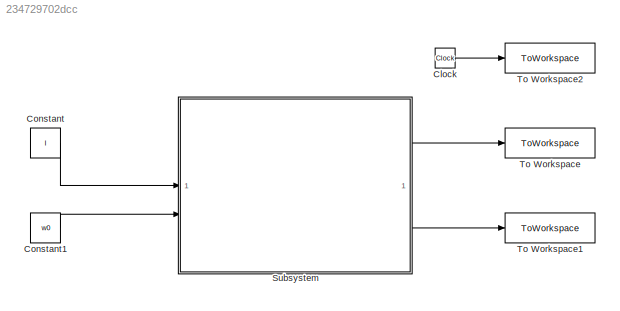
MODEL slx_234729702dcc
KIND model
CONFIG AbsTol = auto
CONFIG EnableMultiTasking = off
CONFIG FixedStep = auto
CONFIG MaxStep = auto
CONFIG MinStep = auto
CONFIG RelTol = 1e-3
CONFIG SampleTimeConstraint = Unconstrained
CONFIG SolverName = VariableStepAuto
CONFIG StartTime = 0.0
CONFIG StopTime = 10.0
BLOCK [Clock] Clock
BLOCK [Constant] Constant
  Value = I
BLOCK [Constant] Constant1
  Value = w0
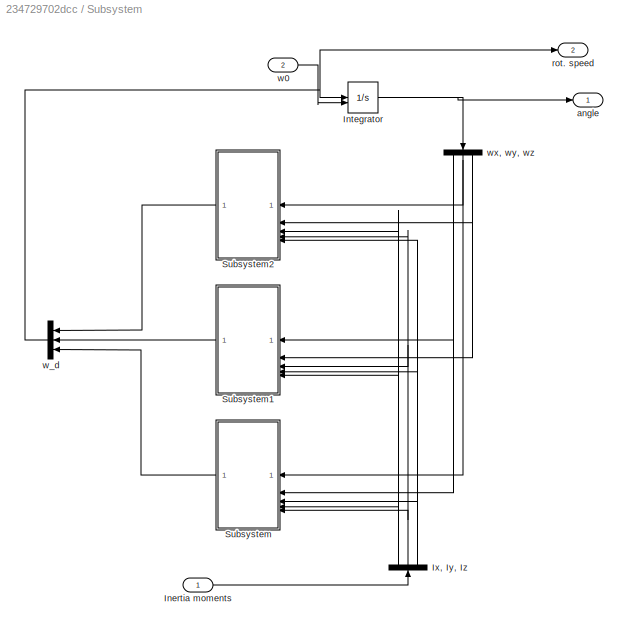
BLOCK [SubSystem] Subsystem
BLOCK [Inport] Subsystem/Inertia moments
BLOCK [Integrator] Subsystem/Integrator
  InitialConditionSource = external
BLOCK [Demux] Subsystem/Ix, Iy, Iz
  NameLocation = right
  Outputs = 3
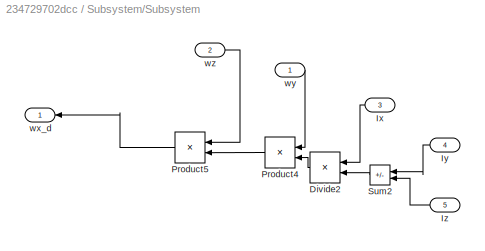
BLOCK [SubSystem] Subsystem/Subsystem
  NameLocation = top
BLOCK [Product] Subsystem/Subsystem/Divide2
  Inputs = /*
  NameLocation = top
BLOCK [Inport] Subsystem/Subsystem/Ix
  Port = 3
BLOCK [Inport] Subsystem/Subsystem/Iy
  Port = 4
BLOCK [Inport] Subsystem/Subsystem/Iz
  Port = 5
BLOCK [Product] Subsystem/Subsystem/Product4
  NameLocation = top
BLOCK [Product] Subsystem/Subsystem/Product5
  NameLocation = top
BLOCK [Sum] Subsystem/Subsystem/Sum2
  IconShape = rectangular
  Inputs = |+-
  NameLocation = top
BLOCK [Outport] Subsystem/Subsystem/wx_d
BLOCK [Inport] Subsystem/Subsystem/wy
BLOCK [Inport] Subsystem/Subsystem/wz
  Port = 2
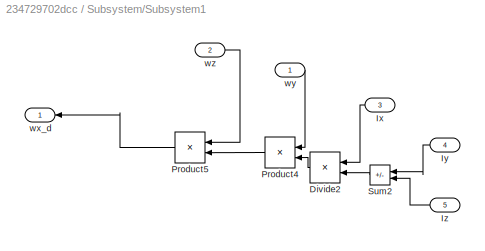
BLOCK [SubSystem] Subsystem/Subsystem1
  NameLocation = top
BLOCK [Product] Subsystem/Subsystem1/Divide2
  Inputs = /*
  NameLocation = top
BLOCK [Inport] Subsystem/Subsystem1/Ix
  Port = 3
BLOCK [Inport] Subsystem/Subsystem1/Iy
  Port = 4
BLOCK [Inport] Subsystem/Subsystem1/Iz
  Port = 5
BLOCK [Product] Subsystem/Subsystem1/Product4
  NameLocation = top
BLOCK [Product] Subsystem/Subsystem1/Product5
  NameLocation = top
BLOCK [Sum] Subsystem/Subsystem1/Sum2
  IconShape = rectangular
  Inputs = |+-
  NameLocation = top
BLOCK [Outport] Subsystem/Subsystem1/wx_d
BLOCK [Inport] Subsystem/Subsystem1/wy
BLOCK [Inport] Subsystem/Subsystem1/wz
  Port = 2
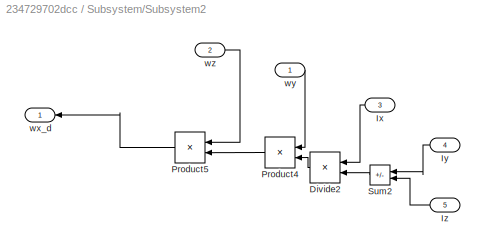
BLOCK [SubSystem] Subsystem/Subsystem2
  NameLocation = top
BLOCK [Product] Subsystem/Subsystem2/Divide2
  Inputs = /*
  NameLocation = top
BLOCK [Inport] Subsystem/Subsystem2/Ix
  Port = 3
BLOCK [Inport] Subsystem/Subsystem2/Iy
  Port = 4
BLOCK [Inport] Subsystem/Subsystem2/Iz
  Port = 5
BLOCK [Product] Subsystem/Subsystem2/Product4
  NameLocation = top
BLOCK [Product] Subsystem/Subsystem2/Product5
  NameLocation = top
BLOCK [Sum] Subsystem/Subsystem2/Sum2
  IconShape = rectangular
  Inputs = |+-
  NameLocation = top
BLOCK [Outport] Subsystem/Subsystem2/wx_d
BLOCK [Inport] Subsystem/Subsystem2/wy
BLOCK [Inport] Subsystem/Subsystem2/wz
  Port = 2
BLOCK [Outport] Subsystem/angle
BLOCK [Outport] Subsystem/rot. speed
  Port = 2
BLOCK [Inport] Subsystem/w0
  Port = 2
BLOCK [Mux] Subsystem/w_d
  DisplayOption = bar
  Inputs = 3
  NameLocation = top
BLOCK [Demux] Subsystem/wx, wy, wz
  NameLocation = left
  Outputs = 3
BLOCK [ToWorkspace] To Workspace
  FixptAsFi = on
  MaxDataPoints = inf
  SampleTime = -1
  VariableName = w
BLOCK [ToWorkspace] To Workspace1
  FixptAsFi = on
  MaxDataPoints = inf
  SampleTime = -1
  VariableName = w_d
BLOCK [ToWorkspace] To Workspace2
  FixptAsFi = on
  MaxDataPoints = inf
  SampleTime = -1
  VariableName = time
LINE Clock:1 -> To Workspace2:1
LINE Constant1:1 -> Subsystem:2
LINE Constant:1 -> Subsystem:1
LINE Subsystem/Inertia moments:1 -> Subsystem/Ix, Iy, Iz:1
NET Subsystem/Integrator:1 -> Subsystem/angle:1, Subsystem/wx, wy, wz:1
NET Subsystem/Ix, Iy, Iz:1 -> Subsystem/Subsystem1:5, Subsystem/Subsystem2:3, Subsystem/Subsystem:4
NET Subsystem/Ix, Iy, Iz:2 -> Subsystem/Subsystem1:3, Subsystem/Subsystem2:4, Subsystem/Subsystem:5
NET Subsystem/Ix, Iy, Iz:3 -> Subsystem/Subsystem1:4, Subsystem/Subsystem2:5, Subsystem/Subsystem:3
LINE Subsystem/Subsystem/Divide2:1 -> Subsystem/Subsystem/Product4:2
LINE Subsystem/Subsystem/Ix:1 -> Subsystem/Subsystem/Divide2:1
LINE Subsystem/Subsystem/Iy:1 -> Subsystem/Subsystem/Sum2:1
LINE Subsystem/Subsystem/Iz:1 -> Subsystem/Subsystem/Sum2:2
LINE Subsystem/Subsystem/Product4:1 -> Subsystem/Subsystem/Product5:2
LINE Subsystem/Subsystem/Product5:1 -> Subsystem/Subsystem/wx_d:1
LINE Subsystem/Subsystem/Sum2:1 -> Subsystem/Subsystem/Divide2:2
LINE Subsystem/Subsystem/wy:1 -> Subsystem/Subsystem/Product4:1
LINE Subsystem/Subsystem/wz:1 -> Subsystem/Subsystem/Product5:1
LINE Subsystem/Subsystem1/Divide2:1 -> Subsystem/Subsystem1/Product4:2
LINE Subsystem/Subsystem1/Ix:1 -> Subsystem/Subsystem1/Divide2:1
LINE Subsystem/Subsystem1/Iy:1 -> Subsystem/Subsystem1/Sum2:1
LINE Subsystem/Subsystem1/Iz:1 -> Subsystem/Subsystem1/Sum2:2
LINE Subsystem/Subsystem1/Product4:1 -> Subsystem/Subsystem1/Product5:2
LINE Subsystem/Subsystem1/Product5:1 -> Subsystem/Subsystem1/wx_d:1
LINE Subsystem/Subsystem1/Sum2:1 -> Subsystem/Subsystem1/Divide2:2
LINE Subsystem/Subsystem1/wy:1 -> Subsystem/Subsystem1/Product4:1
LINE Subsystem/Subsystem1/wz:1 -> Subsystem/Subsystem1/Product5:1
LINE Subsystem/Subsystem1:1 -> Subsystem/w_d:2
LINE Subsystem/Subsystem2/Divide2:1 -> Subsystem/Subsystem2/Product4:2
LINE Subsystem/Subsystem2/Ix:1 -> Subsystem/Subsystem2/Divide2:1
LINE Subsystem/Subsystem2/Iy:1 -> Subsystem/Subsystem2/Sum2:1
LINE Subsystem/Subsystem2/Iz:1 -> Subsystem/Subsystem2/Sum2:2
LINE Subsystem/Subsystem2/Product4:1 -> Subsystem/Subsystem2/Product5:2
LINE Subsystem/Subsystem2/Product5:1 -> Subsystem/Subsystem2/wx_d:1
LINE Subsystem/Subsystem2/Sum2:1 -> Subsystem/Subsystem2/Divide2:2
LINE Subsystem/Subsystem2/wy:1 -> Subsystem/Subsystem2/Product4:1
LINE Subsystem/Subsystem2/wz:1 -> Subsystem/Subsystem2/Product5:1
LINE Subsystem/Subsystem2:1 -> Subsystem/w_d:1
LINE Subsystem/Subsystem:1 -> Subsystem/w_d:3
LINE Subsystem/w0:1 -> Subsystem/Integrator:2
NET Subsystem/w_d:1 -> Subsystem/Integrator:1, Subsystem/rot. speed:1
NET Subsystem/wx, wy, wz:1 -> Subsystem/Subsystem1:1, Subsystem/Subsystem:2
NET Subsystem/wx, wy, wz:2 -> Subsystem/Subsystem2:1, Subsystem/Subsystem:1
NET Subsystem/wx, wy, wz:3 -> Subsystem/Subsystem1:2, Subsystem/Subsystem2:2
LINE Subsystem:1 -> To Workspace:1
LINE Subsystem:2 -> To Workspace1:1
note: NET lines group one-source signal fan-out (src -> all destinations, sorted); 1:1 wires keep LINE
